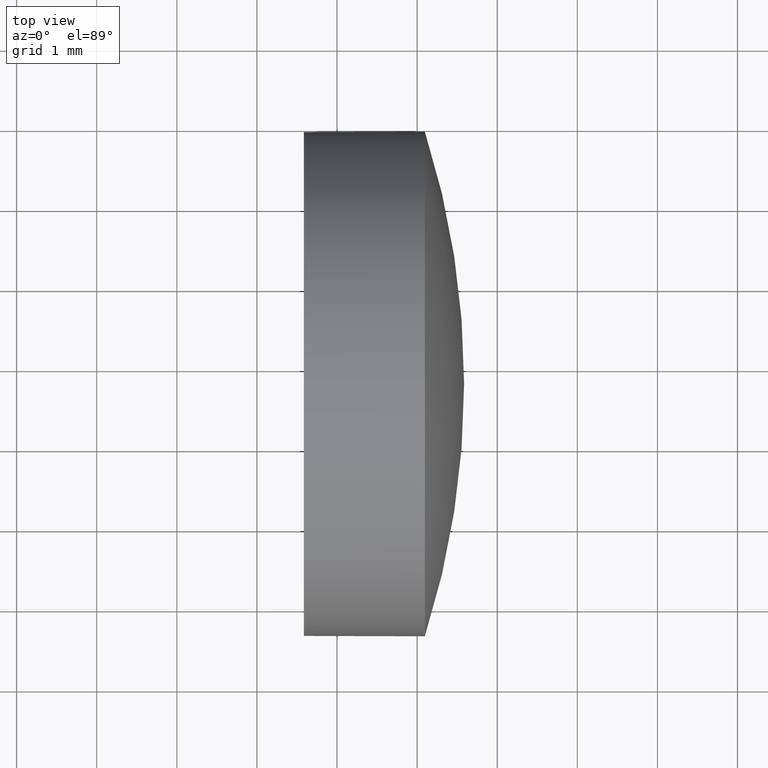
[diagram: clean part render]
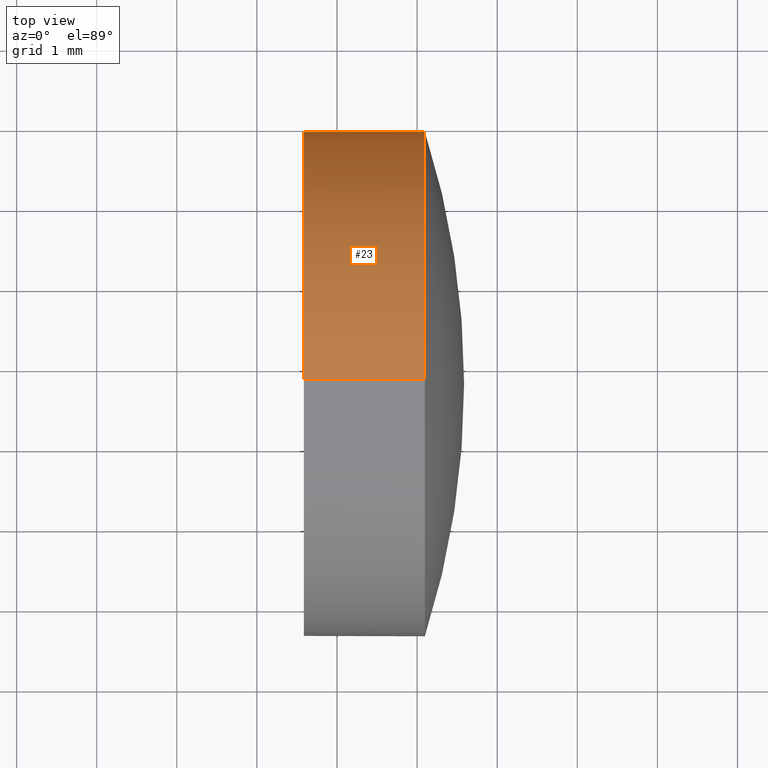
[diagram: same view with one face highlighted and labeled with its STEP entity id]
A machine part, top view. The second image highlights one B-rep face of the part: STEP entity #23.
In plain terms, the highlighted cylindrical surface (partial cylindrical patch) has radius 3.15 mm, axis along (-1, -0, -0).
Its self-contained STEP definition (entity closure, byte-faithful):
#4 = CARTESIAN_POINT ( 'NONE',  ( 499.0965941383895500, 112.7888820155200200, 0.0000000000000000000 ) ) ;
#13 = ORIENTED_EDGE ( 'NONE', *, *, #16, .F. ) ;
#16 = EDGE_CURVE ( 'NONE', #123, #110, #154, .T. ) ;
#17 = CARTESIAN_POINT ( 'NONE',  ( 499.0965941383895500, 112.7888820155200200, 0.0000000000000000000 ) ) ;
#23 = ADVANCED_FACE ( 'NONE', ( #79 ), #69, .T. ) ;
#24 = CIRCLE ( 'NONE', #167, 3.149999999999999900 ) ;
#25 = VECTOR ( 'NONE', #166, 1000.000000000000000 ) ;
#34 = CARTESIAN_POINT ( 'NONE',  ( 479.1000143024504000, 112.7888820155200200, 0.0000000000000000000 ) ) ;
#39 = CARTESIAN_POINT ( 'NONE',  ( 497.5865941383895000, 112.7888820155200200, -3.149999999999999900 ) ) ;
#45 = ORIENTED_EDGE ( 'NONE', *, *, #63, .T. ) ;
#48 = EDGE_CURVE ( 'NONE', #180, #186, #141, .T. ) ;
#51 = DIRECTION ( 'NONE',  ( 0.0000000000000000000, 0.0000000000000000000, 1.000000000000000000 ) ) ;
#55 = CARTESIAN_POINT ( 'NONE',  ( 497.5865941383895000, 112.7888820155200200, 3.149999999999999900 ) ) ;
#56 = CARTESIAN_POINT ( 'NONE',  ( 479.1000143024504000, 112.7888820155200200, -3.149999999999999900 ) ) ;
#59 = ORIENTED_EDGE ( 'NONE', *, *, #91, .T. ) ;
#61 = DIRECTION ( 'NONE',  ( 0.0000000000000000000, 0.0000000000000000000, 1.000000000000000000 ) ) ;
#63 = EDGE_CURVE ( 'NONE', #123, #127, #94, .T. ) ;
#64 = EDGE_LOOP ( 'NONE', ( #59, #81, #121, #13, #45 ) ) ;
#66 = CARTESIAN_POINT ( 'NONE',  ( 499.0965941383895500, 115.9388820155200200, 0.0000000000000000000 ) ) ;
#68 = DIRECTION ( 'NONE',  ( 0.0000000000000000000, 0.0000000000000000000, 1.000000000000000000 ) ) ;
#69 = CYLINDRICAL_SURFACE ( 'NONE', #171, 3.149999999999999900 ) ;
#71 = CARTESIAN_POINT ( 'NONE',  ( 499.0965941383895500, 112.7888820155200200, 3.149999999999999900 ) ) ;
#79 = FACE_OUTER_BOUND ( 'NONE', #64, .T. ) ;
#81 = ORIENTED_EDGE ( 'NONE', *, *, #48, .T. ) ;
#82 = DIRECTION ( 'NONE',  ( -1.000000000000000000, -0.0000000000000000000, -0.0000000000000000000 ) ) ;
#89 = DIRECTION ( 'NONE',  ( 0.0000000000000000000, 0.0000000000000000000, 1.000000000000000000 ) ) ;
#91 = EDGE_CURVE ( 'NONE', #127, #180, #161, .T. ) ;
#94 = CIRCLE ( 'NONE', #105, 3.149999999999999900 ) ;
#96 = EDGE_CURVE ( 'NONE', #110, #186, #24, .T. ) ;
#98 = CARTESIAN_POINT ( 'NONE',  ( 499.0965941383895500, 112.7888820155200200, -3.149999999999999900 ) ) ;
#103 = CARTESIAN_POINT ( 'NONE',  ( 497.5865941383895000, 112.7888820155200200, 0.0000000000000000000 ) ) ;
#105 = AXIS2_PLACEMENT_3D ( 'NONE', #17, #82, #51 ) ;
#110 = VERTEX_POINT ( 'NONE', #55 ) ;
#117 = CARTESIAN_POINT ( 'NONE',  ( 479.1000143024504000, 112.7888820155200200, 3.149999999999999900 ) ) ;
#121 = ORIENTED_EDGE ( 'NONE', *, *, #96, .F. ) ;
#123 = VERTEX_POINT ( 'NONE', #71 ) ;
#127 = VERTEX_POINT ( 'NONE', #66 ) ;
#128 = AXIS2_PLACEMENT_3D ( 'NONE', #4, #140, #89 ) ;
#140 = DIRECTION ( 'NONE',  ( -1.000000000000000000, -0.0000000000000000000, -0.0000000000000000000 ) ) ;
#141 = LINE ( 'NONE', #56, #178 ) ;
#142 = DIRECTION ( 'NONE',  ( -1.000000000000000000, -0.0000000000000000000, -0.0000000000000000000 ) ) ;
#146 = DIRECTION ( 'NONE',  ( -1.000000000000000000, -0.0000000000000000000, -0.0000000000000000000 ) ) ;
#148 = DIRECTION ( 'NONE',  ( -1.000000000000000000, -0.0000000000000000000, -0.0000000000000000000 ) ) ;
#154 = LINE ( 'NONE', #117, #25 ) ;
#161 = CIRCLE ( 'NONE', #128, 3.149999999999999900 ) ;
#166 = DIRECTION ( 'NONE',  ( -1.000000000000000000, -0.0000000000000000000, -0.0000000000000000000 ) ) ;
#167 = AXIS2_PLACEMENT_3D ( 'NONE', #103, #142, #61 ) ;
#171 = AXIS2_PLACEMENT_3D ( 'NONE', #34, #148, #68 ) ;
#178 = VECTOR ( 'NONE', #146, 1000.000000000000000 ) ;
#180 = VERTEX_POINT ( 'NONE', #98 ) ;
#186 = VERTEX_POINT ( 'NONE', #39 ) ;